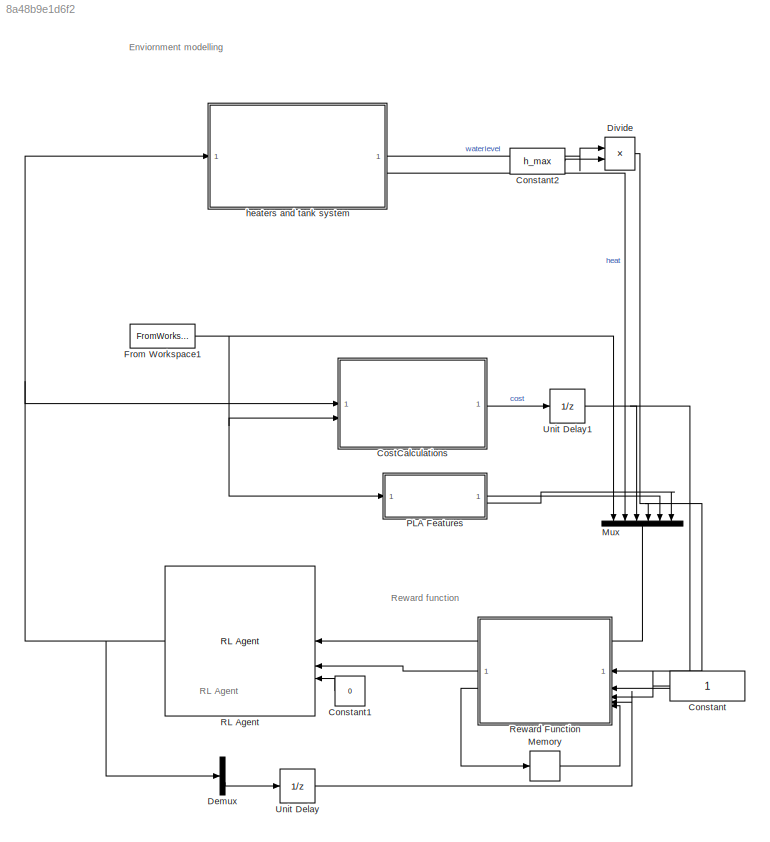
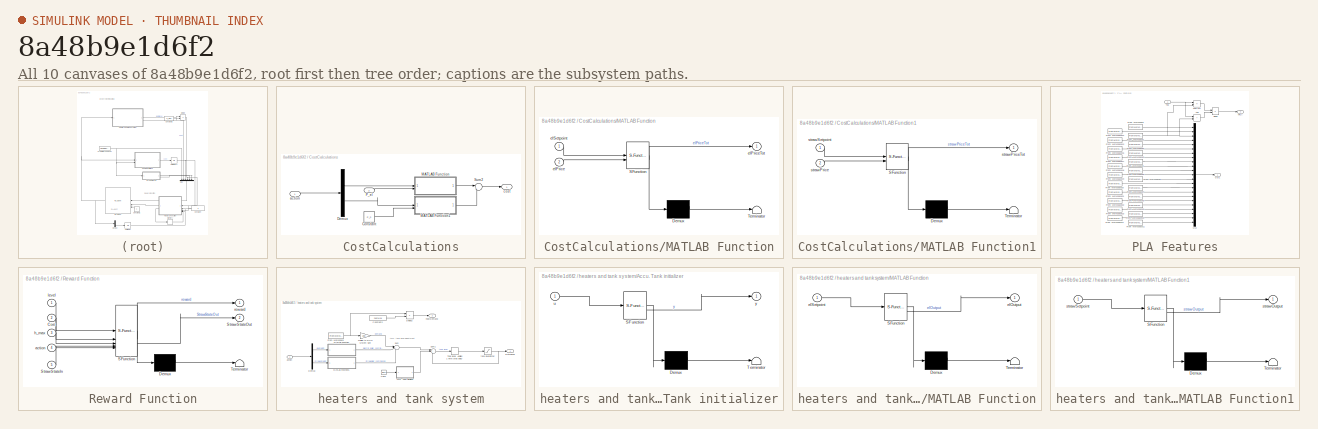
[diagram: thumbnail index - all 10 canvases of the model, root first then tree order]
MODEL slx_8a48b9e1d6f2
KIND model
CONFIG AbsTol = auto
CONFIG EnableMultiTasking = off
CONFIG FixedStep = auto
CONFIG MaxStep = auto
CONFIG MinStep = auto
CONFIG RelTol = 1e-3
CONFIG SampleTimeConstraint = Unconstrained
CONFIG SolverName = VariableStepAuto
CONFIG StartTime = 0.0
CONFIG StopTime = 10.0
BLOCK [Constant] Constant
BLOCK [Constant] Constant1
  Value = 0
BLOCK [Constant] Constant2
  Value = h_max
BLOCK [SubSystem] CostCalculations
BLOCK [Constant] CostCalculations/Constant
  Value = P_h
BLOCK [Demux] CostCalculations/Demux
  Outputs = 2
BLOCK [SubSystem] CostCalculations/MATLAB Function
  ErrorFcn = Stateflow.Translate.translate
  LibrarySourceBlock = simulink/User-Defined\nFunctions/MATLAB Function
  PermitHierarchicalResolution = ExplicitOnly
  SFBlockType = MATLAB Function
  TreatAsAtomicUnit = on
BLOCK [Demux] CostCalculations/MATLAB Function/ Demux 
  Outputs = 1
BLOCK [S-Function] CostCalculations/MATLAB Function/ SFunction 
  EnableBusSupport = on
  FunctionName = sf_sfun
  PortCounts = [2 2]
  SFcnIsStateOwnerBlock = off
  SFunctionDeploymentMode = off
  Tag = Stateflow S-Function 2
BLOCK [Terminator] CostCalculations/MATLAB Function/ Terminator 
BLOCK [Inport] CostCalculations/MATLAB Function/elPrice
  Port = 2
BLOCK [Outport] CostCalculations/MATLAB Function/elPriceTot
BLOCK [Inport] CostCalculations/MATLAB Function/elSetpoint
BLOCK [SubSystem] CostCalculations/MATLAB Function1
  ErrorFcn = Stateflow.Translate.translate
  LibrarySourceBlock = simulink/User-Defined\nFunctions/MATLAB Function
  PermitHierarchicalResolution = ExplicitOnly
  SFBlockType = MATLAB Function
  TreatAsAtomicUnit = on
BLOCK [Demux] CostCalculations/MATLAB Function1/ Demux 
  Outputs = 1
BLOCK [S-Function] CostCalculations/MATLAB Function1/ SFunction 
  EnableBusSupport = on
  FunctionName = sf_sfun
  PortCounts = [2 2]
  SFcnIsStateOwnerBlock = off
  SFunctionDeploymentMode = off
  Tag = Stateflow S-Function 3
BLOCK [Terminator] CostCalculations/MATLAB Function1/ Terminator 
BLOCK [Inport] CostCalculations/MATLAB Function1/strawPrice
  Port = 2
BLOCK [Outport] CostCalculations/MATLAB Function1/strawPriceTot
BLOCK [Inport] CostCalculations/MATLAB Function1/strawSetpoint
BLOCK [Inport] CostCalculations/P_el
  Port = 2
BLOCK [Sum] CostCalculations/Sum2
  Inputs = |++
BLOCK [Inport] CostCalculations/action
BLOCK [Outport] CostCalculations/cost
BLOCK [Demux] Demux
  Outputs = 2
BLOCK [Product] Divide
  Inputs = */
  RndMeth = Zero
  SaturateOnIntegerOverflow = on
BLOCK [FromWorkspace] From Workspace1
  SampleTime = 1
  VariableName = hourAhead
BLOCK [Memory] Memory
BLOCK [Mux] Mux
  DisplayOption = bar
  Inputs = 6
  NameLocation = left
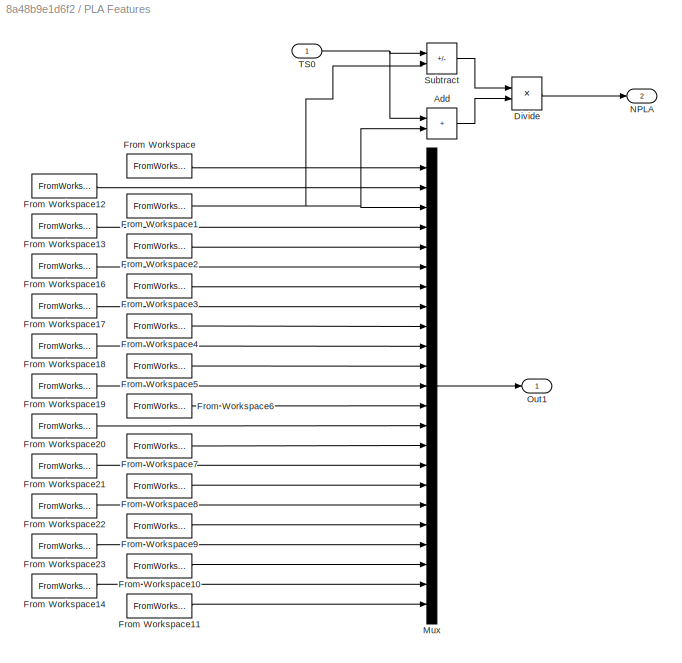
BLOCK [SubSystem] PLA Features
BLOCK [Sum] PLA Features/Add
  IconShape = rectangular
BLOCK [Product] PLA Features/Divide
  Inputs = */
  RndMeth = Zero
  SaturateOnIntegerOverflow = on
BLOCK [FromWorkspace] PLA Features/From Workspace
  VariableName = TS1
BLOCK [FromWorkspace] PLA Features/From Workspace1
  VariableName = TS3
BLOCK [FromWorkspace] PLA Features/From Workspace10
  VariableName = TS21
BLOCK [FromWorkspace] PLA Features/From Workspace11
  VariableName = TS23
BLOCK [FromWorkspace] PLA Features/From Workspace12
  VariableName = TS2
BLOCK [FromWorkspace] PLA Features/From Workspace13
  VariableName = TS4
BLOCK [FromWorkspace] PLA Features/From Workspace14
  VariableName = TS22
BLOCK [FromWorkspace] PLA Features/From Workspace16
  VariableName = TS6
BLOCK [FromWorkspace] PLA Features/From Workspace17
  VariableName = TS8
BLOCK [FromWorkspace] PLA Features/From Workspace18
  VariableName = TS10
BLOCK [FromWorkspace] PLA Features/From Workspace19
  VariableName = TS12
BLOCK [FromWorkspace] PLA Features/From Workspace2
  VariableName = TS5
BLOCK [FromWorkspace] PLA Features/From Workspace20
  VariableName = TS14
BLOCK [FromWorkspace] PLA Features/From Workspace21
  VariableName = TS16
BLOCK [FromWorkspace] PLA Features/From Workspace22
  VariableName = TS18
BLOCK [FromWorkspace] PLA Features/From Workspace23
  VariableName = TS20
BLOCK [FromWorkspace] PLA Features/From Workspace3
  VariableName = TS7
BLOCK [FromWorkspace] PLA Features/From Workspace4
  VariableName = TS9
BLOCK [FromWorkspace] PLA Features/From Workspace5
  VariableName = TS11
BLOCK [FromWorkspace] PLA Features/From Workspace6
  VariableName = TS13
BLOCK [FromWorkspace] PLA Features/From Workspace7
  VariableName = TS15
BLOCK [FromWorkspace] PLA Features/From Workspace8
  VariableName = TS17
BLOCK [FromWorkspace] PLA Features/From Workspace9
  VariableName = TS19
BLOCK [Mux] PLA Features/Mux
  DisplayOption = bar
  Inputs = 23
BLOCK [Outport] PLA Features/NPLA
  Port = 2
BLOCK [Outport] PLA Features/Out1
BLOCK [Sum] PLA Features/Subtract
  IconShape = rectangular
  Inputs = +-
BLOCK [Inport] PLA Features/TS0
BLOCK [Reference] RL Agent  REF=rllib/RL Agent
  SourceBlock = rllib/RL Agent
  SourceType = RL Agent
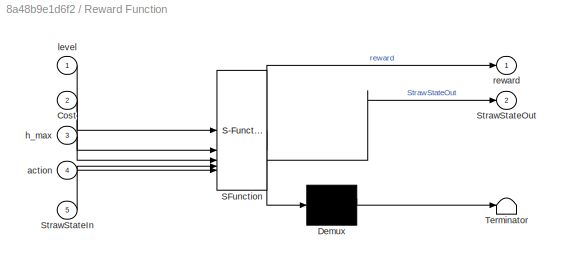
BLOCK [SubSystem] Reward Function
  ErrorFcn = Stateflow.Translate.translate
  LibrarySourceBlock = simulink/User-Defined\nFunctions/MATLAB Function
  PermitHierarchicalResolution = ExplicitOnly
  SFBlockType = MATLAB Function
  SystemSampleTime = 1
  TreatAsAtomicUnit = on
BLOCK [Demux] Reward Function/ Demux 
  Outputs = 1
BLOCK [S-Function] Reward Function/ SFunction 
  EnableBusSupport = on
  FunctionName = sf_sfun
  PortCounts = [5 3]
  SFcnIsStateOwnerBlock = off
  SFunctionDeploymentMode = off
  Tag = Stateflow S-Function 1
BLOCK [Terminator] Reward Function/ Terminator 
BLOCK [Inport] Reward Function/Cost
  Port = 2
BLOCK [Inport] Reward Function/StrawStateIn
  Port = 5
BLOCK [Outport] Reward Function/StrawStateOut
  Port = 2
BLOCK [Inport] Reward Function/action
  Port = 4
BLOCK [Inport] Reward Function/h_max
  Port = 3
BLOCK [Inport] Reward Function/level
BLOCK [Outport] Reward Function/reward
BLOCK [UnitDelay] Unit Delay
  HasFrameUpgradeWarning = on
  SampleTime = -1
BLOCK [UnitDelay] Unit Delay1
  HasFrameUpgradeWarning = on
  SampleTime = -1
BLOCK [SubSystem] heaters and tank system
BLOCK [SubSystem] heaters and tank system/Accu. Tank initializer
  ErrorFcn = Stateflow.Translate.translate
  LibrarySourceBlock = simulink/User-Defined\nFunctions/MATLAB Function
  PermitHierarchicalResolution = ExplicitOnly
  SFBlockType = MATLAB Function
  TreatAsAtomicUnit = on
BLOCK [Demux] heaters and tank system/Accu. Tank initializer/ Demux 
  Outputs = 1
BLOCK [S-Function] heaters and tank system/Accu. Tank initializer/ SFunction 
  EnableBusSupport = on
  FunctionName = sf_sfun
  PortCounts = [1 2]
  SFcnIsStateOwnerBlock = off
  SFunctionDeploymentMode = off
  Tag = Stateflow S-Function 8
BLOCK [Terminator] heaters and tank system/Accu. Tank initializer/ Terminator 
BLOCK [Inport] heaters and tank system/Accu. Tank initializer/u
BLOCK [Outport] heaters and tank system/Accu. Tank initializer/y
BLOCK [Clock] heaters and tank system/Clock
BLOCK [Constant] heaters and tank system/Constant2
  Value = heatMax
BLOCK [Demux] heaters and tank system/Demux
  Outputs = 2
BLOCK [Product] heaters and tank system/Divide2
  Inputs = */
  RndMeth = Zero
  SaturateOnIntegerOverflow = on
BLOCK [FromWorkspace] heaters and tank system/From Workspace
  SampleTime = 1
  VariableName = heatDemand
BLOCK [SubSystem] heaters and tank system/MATLAB Function
  ErrorFcn = Stateflow.Translate.translate
  LibrarySourceBlock = simulink/User-Defined\nFunctions/MATLAB Function
  PermitHierarchicalResolution = ExplicitOnly
  SFBlockType = MATLAB Function
  SystemSampleTime = 1
  TreatAsAtomicUnit = on
BLOCK [Demux] heaters and tank system/MATLAB Function/ Demux 
  Outputs = 1
BLOCK [S-Function] heaters and tank system/MATLAB Function/ SFunction 
  EnableBusSupport = on
  FunctionName = sf_sfun
  PortCounts = [1 2]
  SFcnIsStateOwnerBlock = off
  SFunctionDeploymentMode = off
  Tag = Stateflow S-Function 6
BLOCK [Terminator] heaters and tank system/MATLAB Function/ Terminator 
BLOCK [Outport] heaters and tank system/MATLAB Function/elOutput
BLOCK [Inport] heaters and tank system/MATLAB Function/elSetpoint
BLOCK [SubSystem] heaters and tank system/MATLAB Function1
  ErrorFcn = Stateflow.Translate.translate
  LibrarySourceBlock = simulink/User-Defined\nFunctions/MATLAB Function
  PermitHierarchicalResolution = ExplicitOnly
  SFBlockType = MATLAB Function
  SystemSampleTime = 1
  TreatAsAtomicUnit = on
BLOCK [Demux] heaters and tank system/MATLAB Function1/ Demux 
  Outputs = 1
BLOCK [S-Function] heaters and tank system/MATLAB Function1/ SFunction 
  EnableBusSupport = on
  FunctionName = sf_sfun
  PortCounts = [1 2]
  SFcnIsStateOwnerBlock = off
  SFunctionDeploymentMode = off
  Tag = Stateflow S-Function 7
BLOCK [Terminator] heaters and tank system/MATLAB Function1/ Terminator 
BLOCK [Outport] heaters and tank system/MATLAB Function1/strawOutput
BLOCK [Inport] heaters and tank system/MATLAB Function1/strawSetpoint
BLOCK [Sum] heaters and tank system/Sum
  Inputs = |-++
BLOCK [Sum] heaters and tank system/Sum1
  Inputs = |+++
BLOCK [Memory] heaters and tank system/Tank level. Applies 1 time step delay
  InheritSampleTime = on
BLOCK [Inport] heaters and tank system/action
BLOCK [Outport] heaters and tank system/heatDemand
  Port = 2
BLOCK [Gain] heaters and tank system/scaling to DHN system size
  Gain = 200
BLOCK [Saturate] heaters and tank system/tank level limiter
  LowerLimit = 0
  UpperLimit = h_max
BLOCK [Outport] heaters and tank system/waterlevel
ANNOTATION (root): Enviornment modelling
ANNOTATION (root): RL Agent
ANNOTATION (root): Reward function
ANNOTATION heaters and tank system: Accu. tank level adjustment
LINE Constant1:1 -> RL Agent:3
LINE Constant2:1 -> Divide:2
LINE Constant:1 -> Reward Function:3
LINE CostCalculations/Constant:1 -> CostCalculations/MATLAB Function1:2
LINE CostCalculations/Demux:1 -> CostCalculations/MATLAB Function:1
LINE CostCalculations/Demux:2 -> CostCalculations/MATLAB Function1:1
LINE CostCalculations/MATLAB Function1:1 -> CostCalculations/Sum2:2
LINE CostCalculations/MATLAB Function:1 -> CostCalculations/Sum2:1
LINE CostCalculations/P_el:1 -> CostCalculations/MATLAB Function:2
LINE CostCalculations/Sum2:1 -> CostCalculations/cost:1
LINE CostCalculations/action:1 -> CostCalculations/Demux:1
LINE CostCalculations:1 -> Unit Delay1:1
LINE Demux:2 -> Unit Delay:1
NET Divide:1 -> Mux:4, Reward Function:1
NET From Workspace1:1 -> CostCalculations:2, Mux:1, PLA Features:1
LINE Memory:1 -> Reward Function:5
LINE Mux:1 -> RL Agent:1
LINE PLA Features/Add:1 -> PLA Features/Divide:2
LINE PLA Features/Divide:1 -> PLA Features/NPLA:1
LINE PLA Features/From Workspace10:1 -> PLA Features/Mux:21
LINE PLA Features/From Workspace11:1 -> PLA Features/Mux:23
LINE PLA Features/From Workspace12:1 -> PLA Features/Mux:2
LINE PLA Features/From Workspace13:1 -> PLA Features/Mux:4
LINE PLA Features/From Workspace14:1 -> PLA Features/Mux:22
LINE PLA Features/From Workspace16:1 -> PLA Features/Mux:6
LINE PLA Features/From Workspace17:1 -> PLA Features/Mux:8
LINE PLA Features/From Workspace18:1 -> PLA Features/Mux:10
LINE PLA Features/From Workspace19:1 -> PLA Features/Mux:12
NET PLA Features/From Workspace1:1 -> PLA Features/Add:2, PLA Features/Mux:3, PLA Features/Subtract:2
LINE PLA Features/From Workspace20:1 -> PLA Features/Mux:14
LINE PLA Features/From Workspace21:1 -> PLA Features/Mux:16
LINE PLA Features/From Workspace22:1 -> PLA Features/Mux:18
LINE PLA Features/From Workspace23:1 -> PLA Features/Mux:20
LINE PLA Features/From Workspace2:1 -> PLA Features/Mux:5
LINE PLA Features/From Workspace3:1 -> PLA Features/Mux:7
LINE PLA Features/From Workspace4:1 -> PLA Features/Mux:9
LINE PLA Features/From Workspace5:1 -> PLA Features/Mux:11
LINE PLA Features/From Workspace6:1 -> PLA Features/Mux:13
LINE PLA Features/From Workspace7:1 -> PLA Features/Mux:15
LINE PLA Features/From Workspace8:1 -> PLA Features/Mux:17
LINE PLA Features/From Workspace9:1 -> PLA Features/Mux:19
LINE PLA Features/From Workspace:1 -> PLA Features/Mux:1
LINE PLA Features/Mux:1 -> PLA Features/Out1:1
LINE PLA Features/Subtract:1 -> PLA Features/Divide:1
NET PLA Features/TS0:1 -> PLA Features/Add:1, PLA Features/Subtract:1
LINE PLA Features:1 -> Mux:5
LINE PLA Features:2 -> Mux:6
NET RL Agent:1 -> CostCalculations:1, Demux:1, heaters and tank system:1
LINE Reward Function:1 -> RL Agent:2
LINE Reward Function:2 -> Memory:1
NET Unit Delay1:1 -> Mux:3, Reward Function:2
LINE Unit Delay:1 -> Reward Function:4
LINE heaters and tank system/Accu. Tank initializer:1 -> heaters and tank system/Sum1:2
LINE heaters and tank system/Clock:1 -> heaters and tank system/Accu. Tank initializer:1
LINE heaters and tank system/Constant2:1 -> heaters and tank system/Divide2:2
LINE heaters and tank system/Demux:1 -> heaters and tank system/MATLAB Function:1
LINE heaters and tank system/Demux:2 -> heaters and tank system/MATLAB Function1:1
LINE heaters and tank system/Divide2:1 -> heaters and tank system/heatDemand:1
NET heaters and tank system/From Workspace:1 -> heaters and tank system/Divide2:1, heaters and tank system/scaling to DHN system size:1
LINE heaters and tank system/MATLAB Function1:1 -> heaters and tank system/Sum:3
LINE heaters and tank system/MATLAB Function:1 -> heaters and tank system/Sum:2
LINE heaters and tank system/Sum1:1 -> heaters and tank system/Tank level. Applies 1 time step delay:1
LINE heaters and tank system/Sum:1 -> heaters and tank system/Sum1:1
LINE heaters and tank system/Tank level. Applies 1 time step delay:1 -> heaters and tank system/tank level limiter:1
LINE heaters and tank system/action:1 -> heaters and tank system/Demux:1
LINE heaters and tank system/scaling to DHN system size:1 -> heaters and tank system/Sum:1
NET heaters and tank system/tank level limiter:1 -> heaters and tank system/Sum1:3, heaters and tank system/waterlevel:1
LINE heaters and tank system:1 -> Divide:1
LINE heaters and tank system:2 -> Mux:2
note: NET lines group one-source signal fan-out (src -> all destinations, sorted); 1:1 wires keep LINE
CHART Reward Function states=1 transitions=1
  STATE_LABEL 'eML_blk_kernel()'
  STATE_LABEL 'SCRIPT:\nfunction [reward, StrawStateOut] = fcn(level,Cost,h_max,action,StrawStateIn)\n\n\nif (h_max*0.1 <= level) && (level <= h_max*0.9)\n    r1 = -Cost; %-P\nelseif (h_max*0.9 < level)\n    r1 = -Cost-(level-h_max)^2-1;\nelse \n    r1 = -Cost-(h_max*0.1-level)^2-1;\nend\n\nif action == 1 && StrawStateIn == 0\n    r2 = -0;\n    StrawStateOut = 1;\nelseif action ==0 && StrawStateIn == 1\n    StrawStateOut = 0;\n ...<+630ch>'
CHART CostCalculations/MATLAB Function states=1 transitions=1
  STATE_LABEL 'eML_blk_kernel()'
  STATE_LABEL "SCRIPT:\nfunction elPriceTot = fcn(elSetpoint, elPrice)\n \nswitch int8(elSetpoint)\n    case 0\n        temp = 0;\n    case 1\n        temp = 0.347;\n     otherwise\n        error('Invalid input')\nend\n\n%switch int8(elSetpoint)\n%    case 0\n%        temp = 0;\n%    case 1\n%        temp = 600;\n%    case 2\n%        temp = 1200;\n%    case 3\n%        temp = 1800;\n%    case 4\n%        temp = 2400;\n%    otherwise\n...<+69ch>"
CHART CostCalculations/MATLAB Function1 states=1 transitions=1
  STATE_LABEL 'eML_blk_kernel()'
  STATE_LABEL "SCRIPT:\nfunction strawPriceTot = fcn(strawSetpoint, strawPrice)\n \nswitch int8(strawSetpoint)\n    case 0\n        temp = 0;\n    case 1\n        temp = 0.652;\n    otherwise\n        error('Invalid input')\nend\n\n\n%switch int8(strawSetpoint)\n%    case 0\n%        temp = 0;\n%    case 1\n%        temp = 1125;\n%    case 2\n%        temp = 2250;\n%    case 3\n%        temp = 3375;\n%    case 4\n%        temp = 4500;...<+86ch>"
CHART heaters and tank system/MATLAB Function states=1 transitions=1
  STATE_LABEL 'eML_blk_kernel()'
  STATE_LABEL "SCRIPT:\nfunction elOutput = fcn(elSetpoint)\n    \nswitch int8(elSetpoint)\n    case 0\n        elOutput = 0;\n    case 1\n        elOutput = 2400;\n    otherwise\n        error('Invalid input')\nend\n\n%switch int8(elSetpoint)\n%    case 0\n%        elOutput = 0;\n%    case 1\n%        elOutput = 600;\n%    case 2\n%        elOutput = 1200;\n%    case 3\n%        elOutput = 1800;\n%    case 4\n%        elOutput = 240...<+59ch>"
CHART heaters and tank system/MATLAB Function1 states=1 transitions=1
  STATE_LABEL 'eML_blk_kernel()'
  STATE_LABEL "SCRIPT:\nfunction strawOutput = fcn(strawSetpoint)\n\nswitch int8(strawSetpoint)\n    case 0\n        strawOutput = 0;\n    case 1\n        strawOutput = 4500;\n    otherwise\n        error('Invalid input')\nend\n\n\n%switch int8(strawSetpoint)\n%    case 0\n%        strawOutput = 0;\n%    case 1\n%        strawOutput = 1125;\n%    case 2\n%        strawOutput = 2250;\n%    case 3\n%        strawOutput = 3375;\n%    ca...<+87ch>"
CHART heaters and tank system/Accu. Tank initializer states=1 transitions=1
  STATE_LABEL 'eML_blk_kernel()'
  STATE_LABEL 'SCRIPT:\nfunction y = fcn(u)\n\nif u == 0\n    y = 40000;\nelse\n   y = 0;\nend\n\n'
CHART  states=0 transitions=0
CHART  states=0 transitions=0
CHART  states=0 transitions=0
CHART  states=0 transitions=0
CHART  states=0 transitions=0
CHART  states=0 transitions=0
